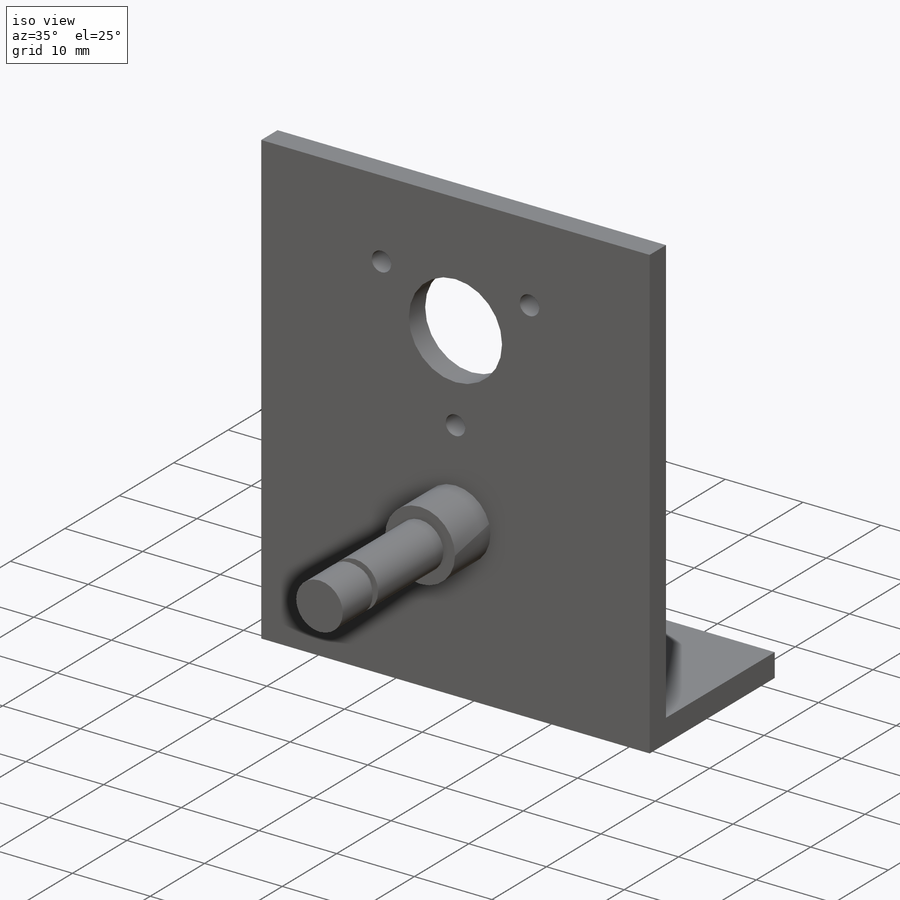
[diagram: iso view]
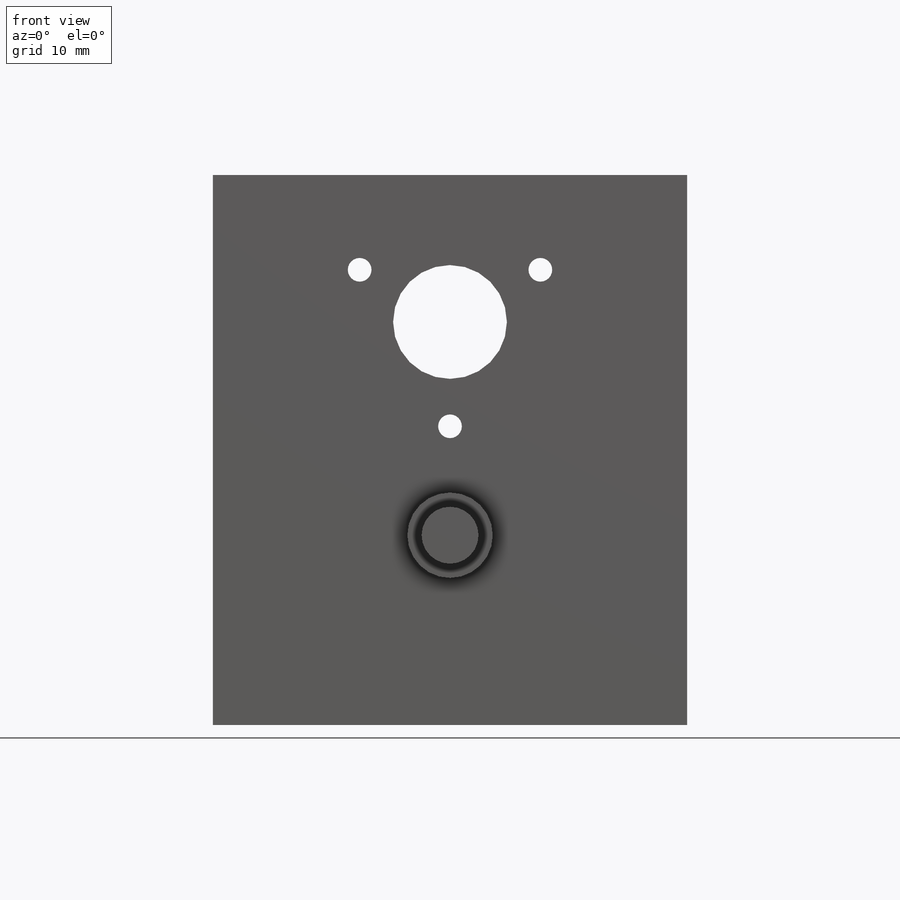
[diagram: front view]
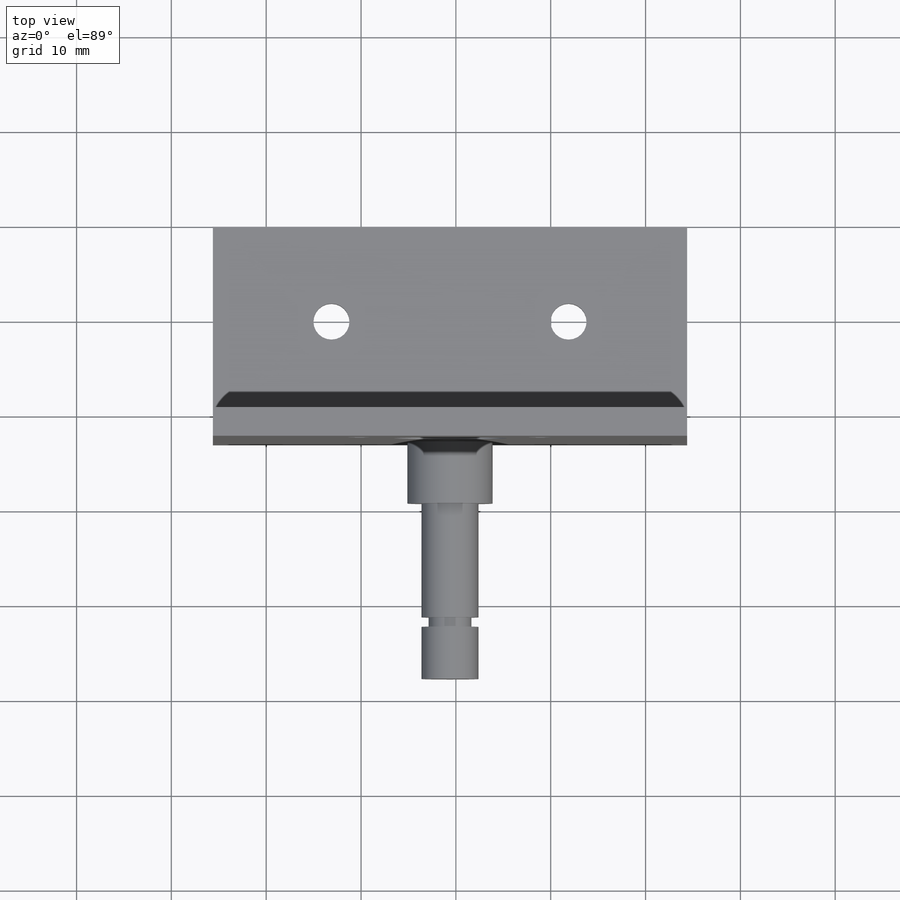
[diagram: top view]
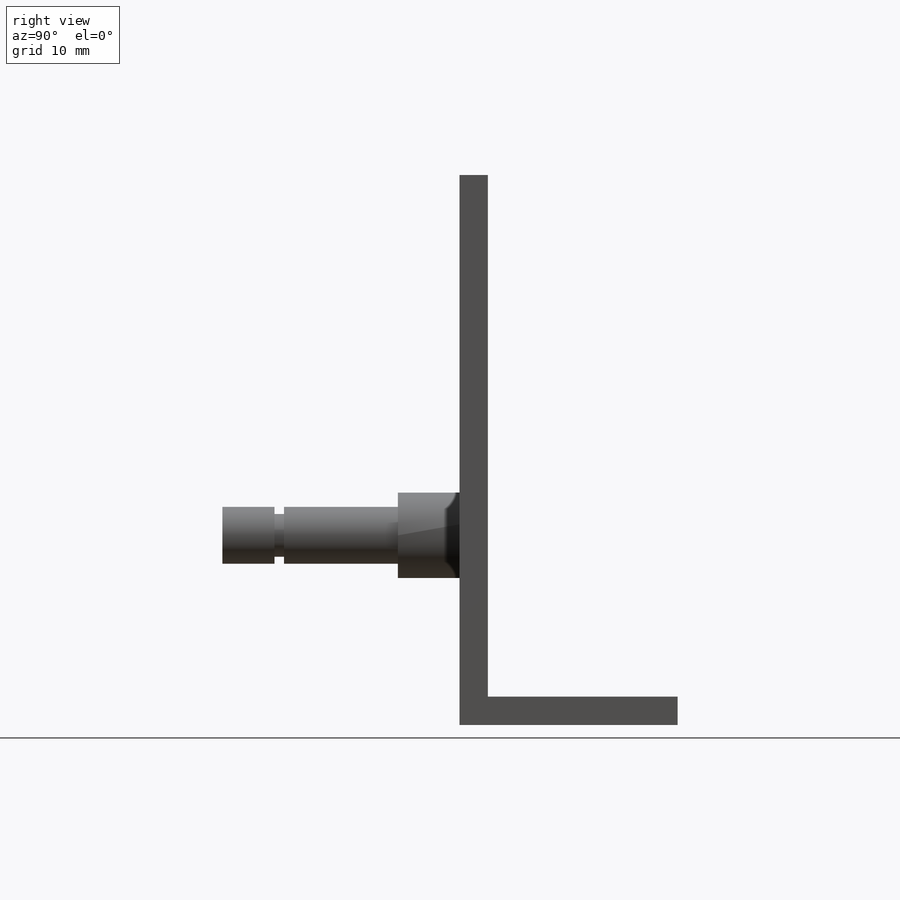
[diagram: right view]
SOLIDWORKS PART (.sldprt)
format: sldprt  version: not decoded by parser v0  size: 210,944 bytes
history: native  units: mm
features: sketch x9, extrude x4, cut_extrude x4, plane x2, material x1 (+13 scaffold rows collapsed)
feature tree (33):
  scaffold x13  (default folders/planes/origin — collapsed)
  material  "Material <not specified>"
  sketch  "Sketch1"  dims[D1=50.0mm D2=58.0mm]
  extrude  "Boss-Extrude1"  Depth=3mm
  sketch  "Sketch2"  dims[D1=3.0mm]
  extrude  "Boss-Extrude2"  Depth=20mm
  sketch  "Sketch4"
  sketch  "Sketch6"  dims[D1=20.0mm]
  extrude  "Boss-Extrude3"  Depth=25mm
  sketch  "Sketch7"  dims[D1=22.5mm]
  cut_extrude  "Cut-Extrude2"  [1 undecoded]
  sketch  "Sketch9"  dims[D1=10.0mm D2=10.0mm D3=12.5mm D4=12.5mm]
  cut_extrude  "Cut-Extrude3"  [1 undecoded]
  sketch  "Sketch10"  dims[D1=~1.553703mm]
  cut_extrude  "Cut-Extrude4"  Depth=10mm
  plane  "Plane1"  Offset=6.5mm
  sketch  "Sketch11"  dims[D1=~4.206806mm]
  extrude  "Boss-Extrude4"  [1 undecoded]
  plane  "Plane2"  Offset=18.5mm
  sketch  "Sketch12"  dims[D1=0.75mm]
  cut_extrude  "Cut-Extrude5"  Depth=1mm
decode coverage: 13 of 17 modeling features carry decoded parameters
note: ~ marks probable driven/reference dimensions
note: 3 parameter values undecoded
summary: no parameter record found for 3 features
note: suppression state not decoded; provenance and decode notes live in map.json
